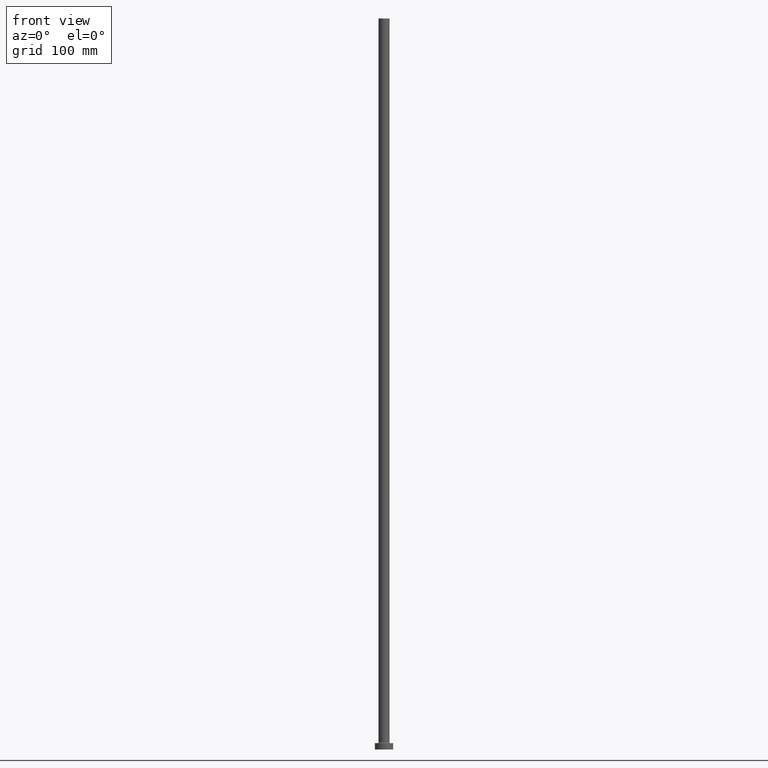
[diagram: clean part render]
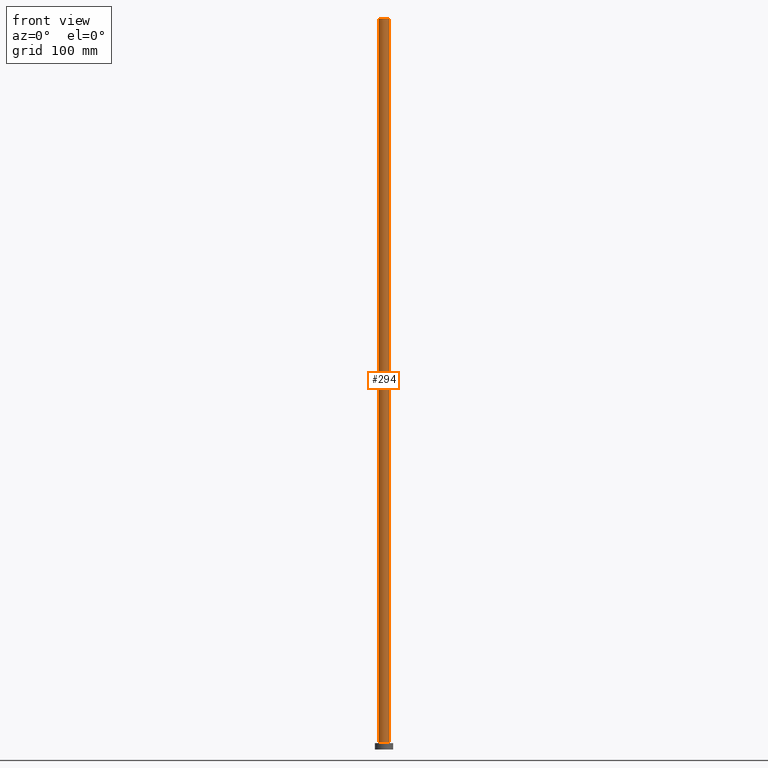
[diagram: same view with one face highlighted and labeled with its STEP entity id]
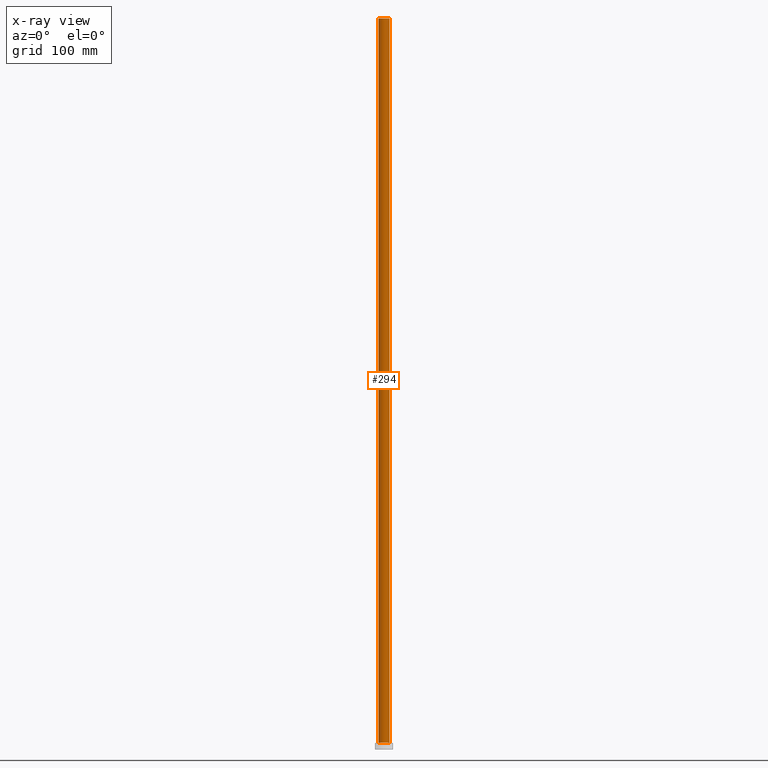
[diagram: x-ray of the same camera — body ghosted, the highlighted face saturated]
A machine part, front view. The second image highlights one B-rep face of the part: STEP entity #294.
The next image is the same camera in x-ray: the body ghosted, the highlighted face saturated — about 0% of this face is hidden behind the body in this view.
In plain terms, the highlighted cylindrical surface (edge-blend (fillet) strip) has radius 6 mm, axis along (-0, -0, -1).
Its self-contained STEP definition (entity closure, byte-faithful):
#1 = EDGE_CURVE ( 'NONE', #301, #285, #30, .T. ) ;
#23 = AXIS2_PLACEMENT_3D ( 'NONE', #228, #406, #367 ) ;
#26 = DIRECTION ( 'NONE',  ( 0.000000000000000000, 0.000000000000000000, 1.000000000000000000 ) ) ;
#29 = CIRCLE ( 'NONE', #45, 6.000000000000000888 ) ;
#30 = LINE ( 'NONE', #385, #33 ) ;
#33 = VECTOR ( 'NONE', #133, 1000.000000000000000 ) ;
#45 = AXIS2_PLACEMENT_3D ( 'NONE', #172, #130, #239 ) ;
#58 = CARTESIAN_POINT ( 'NONE',  ( 6.000000000000000888, 7.347880794884120722E-16, 800.0000000000000000 ) ) ;
#82 = VECTOR ( 'NONE', #453, 1000.000000000000000 ) ;
#113 = VERTEX_POINT ( 'NONE', #292 ) ;
#130 = DIRECTION ( 'NONE',  ( 0.000000000000000000, 0.000000000000000000, 1.000000000000000000 ) ) ;
#133 = DIRECTION ( 'NONE',  ( -0.000000000000000000, -0.000000000000000000, -1.000000000000000000 ) ) ;
#158 = FACE_OUTER_BOUND ( 'NONE', #289, .T. ) ;
#172 = CARTESIAN_POINT ( 'NONE',  ( 0.000000000000000000, 0.000000000000000000, 800.0000000000000000 ) ) ;
#193 = LINE ( 'NONE', #305, #82 ) ;
#194 = CYLINDRICAL_SURFACE ( 'NONE', #23, 6.000000000000000888 ) ;
#195 = ORIENTED_EDGE ( 'NONE', *, *, #439, .T. ) ;
#202 = CIRCLE ( 'NONE', #426, 6.000000000000000888 ) ;
#228 = CARTESIAN_POINT ( 'NONE',  ( 0.000000000000000000, 0.000000000000000000, 800.0000000000000000 ) ) ;
#239 = DIRECTION ( 'NONE',  ( 1.000000000000000000, 0.000000000000000000, 0.000000000000000000 ) ) ;
#265 = CARTESIAN_POINT ( 'NONE',  ( -6.000000000000000888, 0.000000000000000000, 7.700000000000040146 ) ) ;
#272 = VERTEX_POINT ( 'NONE', #58 ) ;
#279 = EDGE_CURVE ( 'NONE', #272, #113, #193, .T. ) ;
#285 = VERTEX_POINT ( 'NONE', #265 ) ;
#289 = EDGE_LOOP ( 'NONE', ( #293, #335, #306, #195 ) ) ;
#292 = CARTESIAN_POINT ( 'NONE',  ( 6.000000000000000888, 7.347880794884120722E-16, 7.700000000000040146 ) ) ;
#293 = ORIENTED_EDGE ( 'NONE', *, *, #279, .F. ) ;
#294 = ADVANCED_FACE ( 'NONE', ( #158 ), #194, .T. ) ;
#301 = VERTEX_POINT ( 'NONE', #449 ) ;
#305 = CARTESIAN_POINT ( 'NONE',  ( 6.000000000000000888, 7.347880794884120722E-16, 800.0000000000000000 ) ) ;
#306 = ORIENTED_EDGE ( 'NONE', *, *, #1, .T. ) ;
#335 = ORIENTED_EDGE ( 'NONE', *, *, #421, .F. ) ;
#367 = DIRECTION ( 'NONE',  ( -1.000000000000000000, 0.000000000000000000, 0.000000000000000000 ) ) ;
#385 = CARTESIAN_POINT ( 'NONE',  ( -6.000000000000000888, 0.000000000000000000, 800.0000000000000000 ) ) ;
#406 = DIRECTION ( 'NONE',  ( -0.000000000000000000, -0.000000000000000000, -1.000000000000000000 ) ) ;
#421 = EDGE_CURVE ( 'NONE', #301, #272, #29, .T. ) ;
#426 = AXIS2_PLACEMENT_3D ( 'NONE', #454, #26, #458 ) ;
#439 = EDGE_CURVE ( 'NONE', #285, #113, #202, .T. ) ;
#449 = CARTESIAN_POINT ( 'NONE',  ( -6.000000000000000888, 0.000000000000000000, 800.0000000000000000 ) ) ;
#453 = DIRECTION ( 'NONE',  ( -0.000000000000000000, -0.000000000000000000, -1.000000000000000000 ) ) ;
#454 = CARTESIAN_POINT ( 'NONE',  ( 0.000000000000000000, 0.000000000000000000, 7.700000000000040146 ) ) ;
#458 = DIRECTION ( 'NONE',  ( 1.000000000000000000, 0.000000000000000000, 0.000000000000000000 ) ) ;